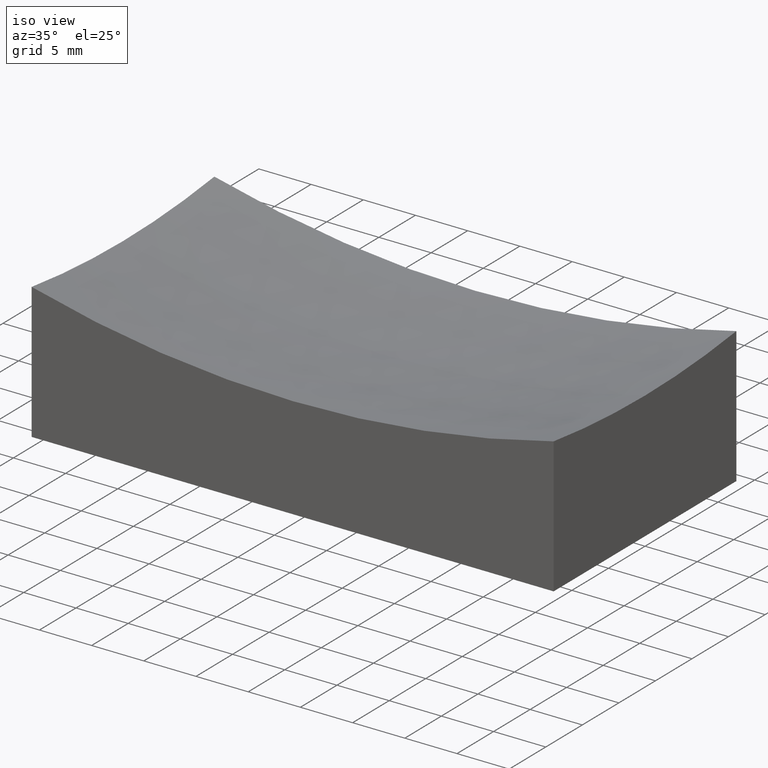
[diagram: clean part render]
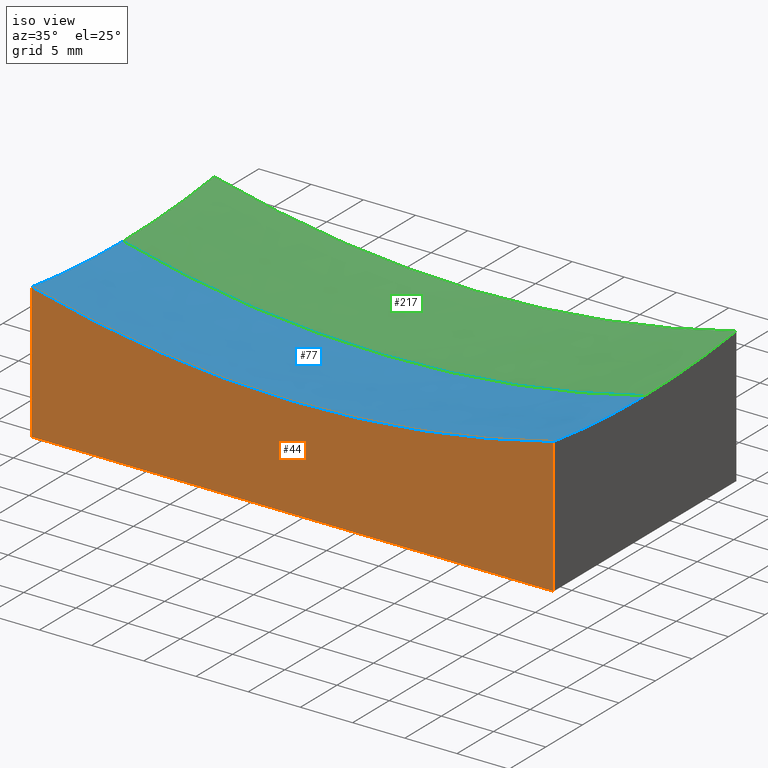
[diagram: same view with three faces highlighted in distinct colors, each labeled with its STEP entity id]
A machine part, iso view with three faces highlighted in distinct colors.
Their STEP definitions:

[orange] entity #44 — the highlighted planar face has unit normal (0, 1, 0).
#1 = AXIS2_PLACEMENT_3D ( 'NONE', #142, #218, #124 ) ;
#18 = FACE_OUTER_BOUND ( 'NONE', #29, .T. ) ;
#22 = VECTOR ( 'NONE', #140, 1000.000000000000000 ) ;
#23 = CARTESIAN_POINT ( 'NONE',  ( 24.99999999999999645, -12.50000000000000000, 0.000000000000000000 ) ) ;
#29 = EDGE_LOOP ( 'NONE', ( #69, #31, #227, #245 ) ) ;
#31 = ORIENTED_EDGE ( 'NONE', *, *, #240, .T. ) ;
#41 = CARTESIAN_POINT ( 'NONE',  ( 24.99999999999999645, -12.50000000000000000, 15.00000000000000000 ) ) ;
#44 = ADVANCED_FACE ( 'NONE', ( #18 ), #116, .F. ) ;
#50 = VERTEX_POINT ( 'NONE', #93 ) ;
#57 = LINE ( 'NONE', #62, #59 ) ;
#59 = VECTOR ( 'NONE', #126, 1000.000000000000000 ) ;
#62 = CARTESIAN_POINT ( 'NONE',  ( -24.99999999999999645, -12.50000000000000000, 0.000000000000000000 ) ) ;
#68 = VERTEX_POINT ( 'NONE', #194 ) ;
#69 = ORIENTED_EDGE ( 'NONE', *, *, #143, .F. ) ;
#93 = CARTESIAN_POINT ( 'NONE',  ( -24.99999999999999645, -12.50000000000000000, 0.000000000000000000 ) ) ;
#101 = VECTOR ( 'NONE', #197, 1000.000000000000000 ) ;
#114 = CIRCLE ( 'NONE', #1, 99.21567416492214875 ) ;
#116 = PLANE ( 'NONE',  #200 ) ;
#120 = DIRECTION ( 'NONE',  ( 0.000000000000000000, -0.000000000000000000, 1.000000000000000000 ) ) ;
#122 = LINE ( 'NONE', #184, #22 ) ;
#124 = DIRECTION ( 'NONE',  ( 3.552713678800500929E-15, 0.000000000000000000, 1.000000000000000000 ) ) ;
#126 = DIRECTION ( 'NONE',  ( 1.000000000000000000, 0.000000000000000000, 0.000000000000000000 ) ) ;
#138 = EDGE_CURVE ( 'NONE', #68, #238, #139, .T. ) ;
#139 = LINE ( 'NONE', #41, #101 ) ;
#140 = DIRECTION ( 'NONE',  ( -0.000000000000000000, -0.000000000000000000, -1.000000000000000000 ) ) ;
#142 = CARTESIAN_POINT ( 'NONE',  ( 1.224646799147353375E-14, -12.49999999999999645, 109.0000000000000000 ) ) ;
#143 = EDGE_CURVE ( 'NONE', #205, #68, #114, .T. ) ;
#177 = DIRECTION ( 'NONE',  ( 0.000000000000000000, 1.000000000000000000, 0.000000000000000000 ) ) ;
#184 = CARTESIAN_POINT ( 'NONE',  ( -24.99999999999999645, -12.50000000000000000, 15.00000000000000000 ) ) ;
#194 = CARTESIAN_POINT ( 'NONE',  ( 24.99999999999999645, -12.50000000000000000, 12.98567815164238048 ) ) ;
#197 = DIRECTION ( 'NONE',  ( -0.000000000000000000, -0.000000000000000000, -1.000000000000000000 ) ) ;
#198 = EDGE_CURVE ( 'NONE', #50, #238, #57, .T. ) ;
#200 = AXIS2_PLACEMENT_3D ( 'NONE', #228, #177, #120 ) ;
#205 = VERTEX_POINT ( 'NONE', #220 ) ;
#218 = DIRECTION ( 'NONE',  ( -0.000000000000000000, -1.000000000000000000, -0.000000000000000000 ) ) ;
#220 = CARTESIAN_POINT ( 'NONE',  ( -24.99999999999998934, -12.49999999999999645, 12.98567815164238048 ) ) ;
#227 = ORIENTED_EDGE ( 'NONE', *, *, #198, .T. ) ;
#228 = CARTESIAN_POINT ( 'NONE',  ( -24.99999999999999645, -12.50000000000000000, 15.00000000000000000 ) ) ;
#238 = VERTEX_POINT ( 'NONE', #23 ) ;
#240 = EDGE_CURVE ( 'NONE', #205, #50, #122, .T. ) ;
#245 = ORIENTED_EDGE ( 'NONE', *, *, #138, .F. ) ;

[blue] entity #77 — the highlighted spherical surface has radius 100 mm.
#1 = AXIS2_PLACEMENT_3D ( 'NONE', #142, #218, #124 ) ;
#2 = DIRECTION ( 'NONE',  ( 1.000000000000000000, 0.000000000000000000, -1.387778780781445676E-16 ) ) ;
#6 = DIRECTION ( 'NONE',  ( 0.000000000000000000, 0.000000000000000000, 1.000000000000000000 ) ) ;
#9 = ORIENTED_EDGE ( 'NONE', *, *, #143, .T. ) ;
#15 = CARTESIAN_POINT ( 'NONE',  ( -25.00000000000000000, -3.061616997868383043E-15, 12.17541634481457358 ) ) ;
#19 = DIRECTION ( 'NONE',  ( 1.224646799147353207E-16, -1.000000000000000000, -1.504538773194923304E-32 ) ) ;
#24 = AXIS2_PLACEMENT_3D ( 'NONE', #176, #155, #118 ) ;
#32 = ORIENTED_EDGE ( 'NONE', *, *, #121, .F. ) ;
#47 = VERTEX_POINT ( 'NONE', #15 ) ;
#49 = VERTEX_POINT ( 'NONE', #94 ) ;
#53 = CIRCLE ( 'NONE', #85, 96.82458365518543530 ) ;
#56 = DIRECTION ( 'NONE',  ( 1.000000000000000000, 1.224646799147353207E-16, 0.000000000000000000 ) ) ;
#60 = EDGE_CURVE ( 'NONE', #47, #205, #182, .T. ) ;
#68 = VERTEX_POINT ( 'NONE', #194 ) ;
#71 = DIRECTION ( 'NONE',  ( 1.000000000000000000, -2.775557561562891351E-16, -0.000000000000000000 ) ) ;
#72 = CARTESIAN_POINT ( 'NONE',  ( 1.224646799147353375E-14, 0.000000000000000000, 109.0000000000000000 ) ) ;
#77 = ADVANCED_FACE ( 'NONE', ( #249 ), #178, .F. ) ;
#79 = CARTESIAN_POINT ( 'NONE',  ( 1.224646799147353375E-14, 0.000000000000000000, 109.0000000000000000 ) ) ;
#85 = AXIS2_PLACEMENT_3D ( 'NONE', #230, #71, #136 ) ;
#88 = EDGE_CURVE ( 'NONE', #68, #225, #53, .T. ) ;
#94 = CARTESIAN_POINT ( 'NONE',  ( 6.084210576605691869E-15, 0.000000000000000000, 8.999999999999994671 ) ) ;
#111 = ORIENTED_EDGE ( 'NONE', *, *, #88, .T. ) ;
#112 = AXIS2_PLACEMENT_3D ( 'NONE', #72, #211, #2 ) ;
#114 = CIRCLE ( 'NONE', #1, 99.21567416492214875 ) ;
#118 = DIRECTION ( 'NONE',  ( -1.433291761649752693E-16, 1.000000000000000000, 0.000000000000000000 ) ) ;
#121 = EDGE_CURVE ( 'NONE', #47, #49, #125, .T. ) ;
#124 = DIRECTION ( 'NONE',  ( 3.552713678800500929E-15, 0.000000000000000000, 1.000000000000000000 ) ) ;
#125 = CIRCLE ( 'NONE', #212, 100.0000000000000000 ) ;
#132 = CIRCLE ( 'NONE', #165, 100.0000000000000142 ) ;
#136 = DIRECTION ( 'NONE',  ( -2.866583523299504894E-16, -1.000000000000000000, 0.000000000000000000 ) ) ;
#141 = DIRECTION ( 'NONE',  ( 0.000000000000000000, 1.000000000000000000, -0.000000000000000000 ) ) ;
#142 = CARTESIAN_POINT ( 'NONE',  ( 1.224646799147353375E-14, -12.49999999999999645, 109.0000000000000000 ) ) ;
#143 = EDGE_CURVE ( 'NONE', #205, #68, #114, .T. ) ;
#153 = EDGE_CURVE ( 'NONE', #225, #49, #132, .T. ) ;
#155 = DIRECTION ( 'NONE',  ( -1.000000000000000000, -1.387778780781445676E-16, 0.000000000000000000 ) ) ;
#157 = CARTESIAN_POINT ( 'NONE',  ( 1.224646799147353375E-14, 0.000000000000000000, 109.0000000000000000 ) ) ;
#165 = AXIS2_PLACEMENT_3D ( 'NONE', #79, #141, #6 ) ;
#171 = ORIENTED_EDGE ( 'NONE', *, *, #153, .T. ) ;
#176 = CARTESIAN_POINT ( 'NONE',  ( -25.00000000000000000, -3.469446951953616555E-15, 109.0000000000000000 ) ) ;
#178 = SPHERICAL_SURFACE ( 'NONE', #112, 100.0000000000000000 ) ;
#182 = CIRCLE ( 'NONE', #24, 96.82458365518542109 ) ;
#194 = CARTESIAN_POINT ( 'NONE',  ( 24.99999999999999645, -12.50000000000000000, 12.98567815164238048 ) ) ;
#205 = VERTEX_POINT ( 'NONE', #220 ) ;
#208 = ORIENTED_EDGE ( 'NONE', *, *, #60, .T. ) ;
#211 = DIRECTION ( 'NONE',  ( 0.000000000000000000, -1.000000000000000000, -0.000000000000000000 ) ) ;
#212 = AXIS2_PLACEMENT_3D ( 'NONE', #157, #19, #56 ) ;
#218 = DIRECTION ( 'NONE',  ( -0.000000000000000000, -1.000000000000000000, -0.000000000000000000 ) ) ;
#220 = CARTESIAN_POINT ( 'NONE',  ( -24.99999999999998934, -12.49999999999999645, 12.98567815164238048 ) ) ;
#223 = CARTESIAN_POINT ( 'NONE',  ( 25.00000000000000000, 3.851859888774471706E-31, 12.17541634481456647 ) ) ;
#225 = VERTEX_POINT ( 'NONE', #223 ) ;
#230 = CARTESIAN_POINT ( 'NONE',  ( 25.00000000000000000, -6.938893903907225222E-15, 109.0000000000000000 ) ) ;
#247 = EDGE_LOOP ( 'NONE', ( #32, #208, #9, #111, #171 ) ) ;
#249 = FACE_OUTER_BOUND ( 'NONE', #247, .T. ) ;

[green] entity #217 — the highlighted spherical surface has radius 100 mm.
#6 = DIRECTION ( 'NONE',  ( 0.000000000000000000, 0.000000000000000000, 1.000000000000000000 ) ) ;
#11 = ORIENTED_EDGE ( 'NONE', *, *, #127, .T. ) ;
#15 = CARTESIAN_POINT ( 'NONE',  ( -25.00000000000000000, -3.061616997868383043E-15, 12.17541634481457358 ) ) ;
#19 = DIRECTION ( 'NONE',  ( 1.224646799147353207E-16, -1.000000000000000000, -1.504538773194923304E-32 ) ) ;
#25 = CARTESIAN_POINT ( 'NONE',  ( 25.00000000000000355, 12.50000000000000000, 12.98567815164238048 ) ) ;
#26 = DIRECTION ( 'NONE',  ( 0.000000000000000000, -1.000000000000000000, -0.000000000000000000 ) ) ;
#42 = AXIS2_PLACEMENT_3D ( 'NONE', #55, #209, #214 ) ;
#47 = VERTEX_POINT ( 'NONE', #15 ) ;
#49 = VERTEX_POINT ( 'NONE', #94 ) ;
#55 = CARTESIAN_POINT ( 'NONE',  ( 25.00000000000000000, -6.938893903907225222E-15, 109.0000000000000000 ) ) ;
#56 = DIRECTION ( 'NONE',  ( 1.000000000000000000, 1.224646799147353207E-16, 0.000000000000000000 ) ) ;
#61 = DIRECTION ( 'NONE',  ( 0.000000000000000000, 0.000000000000000000, -1.000000000000000000 ) ) ;
#65 = ORIENTED_EDGE ( 'NONE', *, *, #163, .T. ) ;
#66 = ORIENTED_EDGE ( 'NONE', *, *, #121, .T. ) ;
#76 = CARTESIAN_POINT ( 'NONE',  ( -25.00000000000000000, 12.50000000000000000, 12.98567815164238048 ) ) ;
#78 = AXIS2_PLACEMENT_3D ( 'NONE', #201, #123, #61 ) ;
#79 = CARTESIAN_POINT ( 'NONE',  ( 1.224646799147353375E-14, 0.000000000000000000, 109.0000000000000000 ) ) ;
#89 = EDGE_LOOP ( 'NONE', ( #242, #66, #172, #11, #65 ) ) ;
#90 = EDGE_CURVE ( 'NONE', #145, #47, #231, .T. ) ;
#94 = CARTESIAN_POINT ( 'NONE',  ( 6.084210576605691869E-15, 0.000000000000000000, 8.999999999999994671 ) ) ;
#103 = CARTESIAN_POINT ( 'NONE',  ( 1.224646799147353375E-14, 0.000000000000000000, 109.0000000000000000 ) ) ;
#105 = DIRECTION ( 'NONE',  ( 1.000000000000000000, 0.000000000000000000, -1.387778780781445676E-16 ) ) ;
#119 = DIRECTION ( 'NONE',  ( -1.433291761649752693E-16, 1.000000000000000000, 0.000000000000000000 ) ) ;
#121 = EDGE_CURVE ( 'NONE', #47, #49, #125, .T. ) ;
#123 = DIRECTION ( 'NONE',  ( -0.000000000000000000, 1.000000000000000000, -0.000000000000000000 ) ) ;
#125 = CIRCLE ( 'NONE', #212, 100.0000000000000000 ) ;
#127 = EDGE_CURVE ( 'NONE', #225, #189, #135, .T. ) ;
#132 = CIRCLE ( 'NONE', #165, 100.0000000000000142 ) ;
#135 = CIRCLE ( 'NONE', #42, 96.82458365518543530 ) ;
#141 = DIRECTION ( 'NONE',  ( 0.000000000000000000, 1.000000000000000000, -0.000000000000000000 ) ) ;
#145 = VERTEX_POINT ( 'NONE', #76 ) ;
#153 = EDGE_CURVE ( 'NONE', #225, #49, #132, .T. ) ;
#157 = CARTESIAN_POINT ( 'NONE',  ( 1.224646799147353375E-14, 0.000000000000000000, 109.0000000000000000 ) ) ;
#162 = FACE_OUTER_BOUND ( 'NONE', #89, .T. ) ;
#163 = EDGE_CURVE ( 'NONE', #189, #145, #192, .T. ) ;
#165 = AXIS2_PLACEMENT_3D ( 'NONE', #79, #141, #6 ) ;
#172 = ORIENTED_EDGE ( 'NONE', *, *, #153, .F. ) ;
#188 = AXIS2_PLACEMENT_3D ( 'NONE', #196, #213, #119 ) ;
#189 = VERTEX_POINT ( 'NONE', #25 ) ;
#192 = CIRCLE ( 'NONE', #78, 99.21567416492216296 ) ;
#196 = CARTESIAN_POINT ( 'NONE',  ( -25.00000000000000000, -3.469446951953616555E-15, 109.0000000000000000 ) ) ;
#199 = SPHERICAL_SURFACE ( 'NONE', #239, 100.0000000000000000 ) ;
#201 = CARTESIAN_POINT ( 'NONE',  ( 1.224646799147353375E-14, 12.50000000000000000, 109.0000000000000000 ) ) ;
#209 = DIRECTION ( 'NONE',  ( 1.000000000000000000, -2.775557561562891351E-16, -0.000000000000000000 ) ) ;
#212 = AXIS2_PLACEMENT_3D ( 'NONE', #157, #19, #56 ) ;
#213 = DIRECTION ( 'NONE',  ( -1.000000000000000000, -1.387778780781445676E-16, 0.000000000000000000 ) ) ;
#214 = DIRECTION ( 'NONE',  ( -2.866583523299504894E-16, -1.000000000000000000, 0.000000000000000000 ) ) ;
#217 = ADVANCED_FACE ( 'NONE', ( #162 ), #199, .F. ) ;
#223 = CARTESIAN_POINT ( 'NONE',  ( 25.00000000000000000, 3.851859888774471706E-31, 12.17541634481456647 ) ) ;
#225 = VERTEX_POINT ( 'NONE', #223 ) ;
#231 = CIRCLE ( 'NONE', #188, 96.82458365518542109 ) ;
#239 = AXIS2_PLACEMENT_3D ( 'NONE', #103, #26, #105 ) ;
#242 = ORIENTED_EDGE ( 'NONE', *, *, #90, .T. ) ;